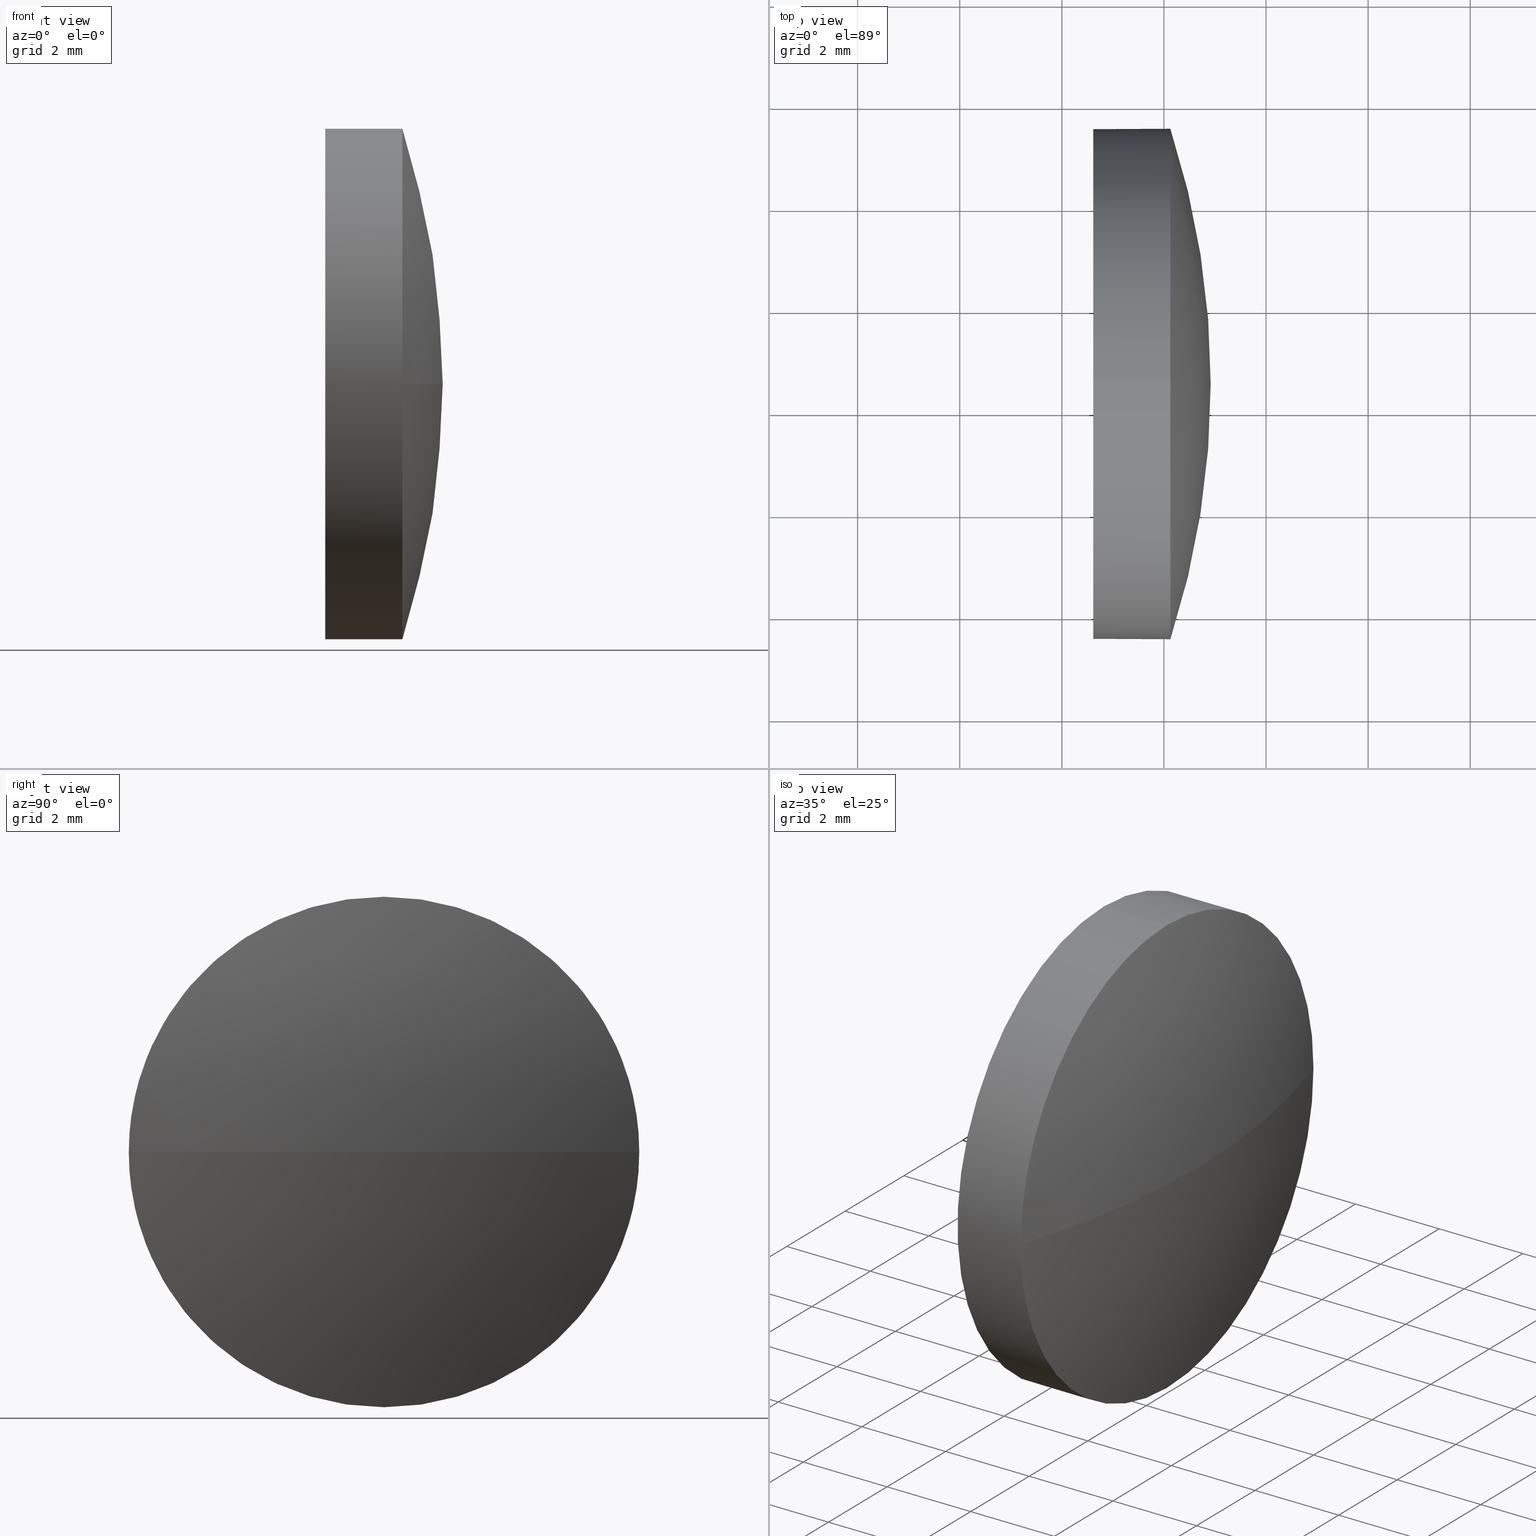
[diagram: canonical four-view strip — front | top / right | iso, engineering-drawing reading convention]
A machine part, canonical four-view strip (front | top / right | iso — engineering-drawing reading convention). The complete STEP part file that produces these views, byte-faithful:
ISO-10303-21;
HEADER;
FILE_DESCRIPTION (( 'STEP AP214' ),
    '1' );
FILE_NAME ('100104.STEP',
    '2019-05-13T08:24:57',
    ( '' ),
    ( '' ),
    'SwSTEP 2.0',
    'SolidWorks 2016',
    '' );
FILE_SCHEMA (( 'AUTOMOTIVE_DESIGN' ));
ENDSEC;

DATA;
#1 = ORIENTED_EDGE ( 'NONE', *, *, #185, .T. ) ;
#2 = VECTOR ( 'NONE', #164, 1000.000000000000000 ) ;
#3 = VERTEX_POINT ( 'NONE', #161 ) ;
#4 = AXIS2_PLACEMENT_3D ( 'NONE', #78, #125, #124 ) ;
#5 = CARTESIAN_POINT ( 'NONE',  ( 448.1260620290427700, 82.52816574681480700, 0.0000000000000000000 ) ) ;
#6 = SHAPE_DEFINITION_REPRESENTATION ( #122, #153 ) ;
#7 = MECHANICAL_DESIGN_GEOMETRIC_PRESENTATION_REPRESENTATION (  '', ( #145 ), #87 ) ;
#8 = CARTESIAN_POINT ( 'NONE',  ( 448.1260620290427700, 82.52816574681480700, 0.0000000000000000000 ) ) ;
#9 = CARTESIAN_POINT ( 'NONE',  ( 446.6160620290427800, 82.52816574681480700, 5.000000000000004400 ) ) ;
#10 = FILL_AREA_STYLE_COLOUR ( '', #58 ) ;
#11 = AXIS2_PLACEMENT_3D ( 'NONE', #35, #178, #33 ) ;
#12 = DIRECTION ( 'NONE',  ( 1.000000000000000000, 0.0000000000000000000, 0.0000000000000000000 ) ) ;
#13 = UNCERTAINTY_MEASURE_WITH_UNIT (LENGTH_MEASURE( 1.000000000000000100E-005 ), #64, 'distance_accuracy_value', 'NONE');
#14 = ORIENTED_EDGE ( 'NONE', *, *, #130, .F. ) ;
#15 =( NAMED_UNIT ( * ) SI_UNIT ( $, .STERADIAN. ) SOLID_ANGLE_UNIT ( ) );
#16 = DIRECTION ( 'NONE',  ( -1.000000000000000000, -0.0000000000000000000, -0.0000000000000000000 ) ) ;
#17 = SURFACE_STYLE_FILL_AREA ( #126 ) ;
#18 = DIRECTION ( 'NONE',  ( 1.000000000000000000, 0.0000000000000000000, 0.0000000000000000000 ) ) ;
#19 = PRESENTATION_LAYER_ASSIGNMENT (  '', '', ( #145 ) ) ;
#20 = SURFACE_STYLE_USAGE ( .BOTH. , #110 ) ;
#21 = APPLICATION_CONTEXT ( 'automotive_design' ) ;
#22 = ORIENTED_EDGE ( 'NONE', *, *, #50, .F. ) ;
#23 = EDGE_CURVE ( 'NONE', #111, #55, #157, .T. ) ;
#24 = VERTEX_POINT ( 'NONE', #121 ) ;
#25 = ORIENTED_EDGE ( 'NONE', *, *, #57, .F. ) ;
#26 = ADVANCED_FACE ( 'NONE', ( #27 ), #119, .T. ) ;
#27 = FACE_OUTER_BOUND ( 'NONE', #44, .T. ) ;
#28 = DIRECTION ( 'NONE',  ( -1.000000000000000000, -0.0000000000000000000, -0.0000000000000000000 ) ) ;
#29 = AXIS2_PLACEMENT_3D ( 'NONE', #48, #61, #36 ) ;
#30 = ORIENTED_EDGE ( 'NONE', *, *, #172, .T. ) ;
#31 = CARTESIAN_POINT ( 'NONE',  ( 432.6982772189161900, 82.52816574681475000, 0.0000000000000000000 ) ) ;
#32 =( LENGTH_UNIT ( ) NAMED_UNIT ( * ) SI_UNIT ( .MILLI., .METRE. ) );
#33 = DIRECTION ( 'NONE',  ( 0.0000000000000000000, 1.000000000000000000, 0.0000000000000000000 ) ) ;
#34 = ORIENTED_EDGE ( 'NONE', *, *, #23, .T. ) ;
#35 = CARTESIAN_POINT ( 'NONE',  ( 432.6982772189161900, 82.52816574681475000, 0.0000000000000000000 ) ) ;
#36 = DIRECTION ( 'NONE',  ( 0.0000000000000000000, 0.0000000000000000000, 1.000000000000000000 ) ) ;
#37 = FACE_OUTER_BOUND ( 'NONE', #148, .T. ) ;
#38 = CIRCLE ( 'NONE', #29, 5.000000000000004400 ) ;
#39 = MECHANICAL_DESIGN_GEOMETRIC_PRESENTATION_REPRESENTATION (  '', ( #43 ), #80 ) ;
#40 = PRODUCT_CONTEXT ( 'NONE', #97, 'mechanical' ) ;
#41 = APPLICATION_PROTOCOL_DEFINITION ( 'draft international standard', 'automotive_design', 1998, #97 ) ;
#42 = CLOSED_SHELL ( 'NONE', ( #152, #133, #103, #26, #135 ) ) ;
#43 = STYLED_ITEM ( 'NONE', ( #132 ), #153 ) ;
#44 = EDGE_LOOP ( 'NONE', ( #89, #186, #34, #30, #22 ) ) ;
#45 = EDGE_CURVE ( 'NONE', #3, #111, #53, .T. ) ;
#46 = SPHERICAL_SURFACE ( 'NONE', #11, 16.21778481012659200 ) ;
#47 = CIRCLE ( 'NONE', #4, 5.000000000000004400 ) ;
#48 = CARTESIAN_POINT ( 'NONE',  ( 448.1260620290427700, 82.52816574681480700, 0.0000000000000000000 ) ) ;
#49 = DIRECTION ( 'NONE',  ( 1.000000000000000000, 0.0000000000000000000, 0.0000000000000000000 ) ) ;
#50 = EDGE_CURVE ( 'NONE', #63, #176, #181, .T. ) ;
#51 = AXIS2_PLACEMENT_3D ( 'NONE', #62, #82, #12 ) ;
#52 = APPLICATION_PROTOCOL_DEFINITION ( 'draft international standard', 'automotive_design', 1998, #21 ) ;
#53 = CIRCLE ( 'NONE', #84, 16.21778481012658800 ) ;
#54 = EDGE_CURVE ( 'NONE', #176, #63, #73, .T. ) ;
#55 = VERTEX_POINT ( 'NONE', #59 ) ;
#56 = LINE ( 'NONE', #144, #2 ) ;
#57 = EDGE_CURVE ( 'NONE', #60, #111, #163, .T. ) ;
#58 = COLOUR_RGB ( '',1.000000000000000000, 1.000000000000000000, 1.000000000000000000 ) ;
#59 = CARTESIAN_POINT ( 'NONE',  ( 448.1260620290427700, 82.52816574681480700, 5.000000000000004400 ) ) ;
#60 = VERTEX_POINT ( 'NONE', #104 ) ;
#61 = DIRECTION ( 'NONE',  ( -1.000000000000000000, -0.0000000000000000000, -0.0000000000000000000 ) ) ;
#62 = CARTESIAN_POINT ( 'NONE',  ( 0.0000000000000000000, 0.0000000000000000000, 0.0000000000000000000 ) ) ;
#63 = VERTEX_POINT ( 'NONE', #142 ) ;
#64 =( LENGTH_UNIT ( ) NAMED_UNIT ( * ) SI_UNIT ( .MILLI., .METRE. ) );
#65 =( LENGTH_UNIT ( ) NAMED_UNIT ( * ) SI_UNIT ( .MILLI., .METRE. ) );
#66 = ORIENTED_EDGE ( 'NONE', *, *, #54, .F. ) ;
#67 = ORIENTED_EDGE ( 'NONE', *, *, #130, .T. ) ;
#68 = PRESENTATION_LAYER_ASSIGNMENT (  '', '', ( #43 ) ) ;
#69 = ORIENTED_EDGE ( 'NONE', *, *, #70, .T. ) ;
#70 = EDGE_CURVE ( 'NONE', #3, #24, #128, .T. ) ;
#71 = DIRECTION ( 'NONE',  ( 0.0000000000000000000, 1.000000000000000000, 1.224646799147353500E-016 ) ) ;
#72 = DIRECTION ( 'NONE',  ( 0.0000000000000000000, 0.0000000000000000000, 1.000000000000000000 ) ) ;
#73 = CIRCLE ( 'NONE', #134, 5.000000000000004400 ) ;
#74 = VECTOR ( 'NONE', #167, 1000.000000000000000 ) ;
#75 = CARTESIAN_POINT ( 'NONE',  ( 445.6745115572683200, 82.52816574681480700, 5.000000000000004400 ) ) ;
#76 = ORIENTED_EDGE ( 'NONE', *, *, #70, .F. ) ;
#77 = FILL_AREA_STYLE_COLOUR ( '', #169 ) ;
#78 = CARTESIAN_POINT ( 'NONE',  ( 448.1260620290427700, 82.52816574681480700, 0.0000000000000000000 ) ) ;
#79 = CARTESIAN_POINT ( 'NONE',  ( 446.6160620290427800, 82.52816574681480700, 0.0000000000000000000 ) ) ;
#80 =( GEOMETRIC_REPRESENTATION_CONTEXT ( 3 ) GLOBAL_UNCERTAINTY_ASSIGNED_CONTEXT ( ( #101 ) ) GLOBAL_UNIT_ASSIGNED_CONTEXT ( ( #65, #170, #156 ) ) REPRESENTATION_CONTEXT ( 'NONE', 'WORKASPACE' ) );
#81 = EDGE_LOOP ( 'NONE', ( #76, #83, #25, #14 ) ) ;
#82 = DIRECTION ( 'NONE',  ( 0.0000000000000000000, 0.0000000000000000000, 1.000000000000000000 ) ) ;
#83 = ORIENTED_EDGE ( 'NONE', *, *, #45, .T. ) ;
#84 = AXIS2_PLACEMENT_3D ( 'NONE', #31, #151, #71 ) ;
#85 = ORIENTED_EDGE ( 'NONE', *, *, #174, .F. ) ;
#86 = AXIS2_PLACEMENT_3D ( 'NONE', #106, #160, #72 ) ;
#87 =( GEOMETRIC_REPRESENTATION_CONTEXT ( 3 ) GLOBAL_UNCERTAINTY_ASSIGNED_CONTEXT ( ( #120 ) ) GLOBAL_UNIT_ASSIGNED_CONTEXT ( ( #32, #91, #15 ) ) REPRESENTATION_CONTEXT ( 'NONE', 'WORKASPACE' ) );
#88 = CARTESIAN_POINT ( 'NONE',  ( 445.6745115572683200, 82.52816574681480700, 0.0000000000000000000 ) ) ;
#89 = ORIENTED_EDGE ( 'NONE', *, *, #185, .F. ) ;
#90 = CARTESIAN_POINT ( 'NONE',  ( 445.6745115572683200, 82.52816574681480700, 0.0000000000000000000 ) ) ;
#91 =( NAMED_UNIT ( * ) PLANE_ANGLE_UNIT ( ) SI_UNIT ( $, .RADIAN. ) );
#92 = PRODUCT_DEFINITION_FORMATION_WITH_SPECIFIED_SOURCE ( '�κ�', '', #127, .NOT_KNOWN. ) ;
#93 = DIRECTION ( 'NONE',  ( -0.0000000000000000000, 0.0000000000000000000, 1.000000000000000000 ) ) ;
#94 = PRESENTATION_STYLE_ASSIGNMENT (( #20 ) ) ;
#95 = PLANE ( 'NONE',  #175 ) ;
#96 = ORIENTED_EDGE ( 'NONE', *, *, #174, .T. ) ;
#97 = APPLICATION_CONTEXT ( 'automotive_design' ) ;
#98 = PRODUCT_DEFINITION ( 'δ֪', '', #92, #129 ) ;
#99 = ORIENTED_EDGE ( 'NONE', *, *, #23, .F. ) ;
#100 = AXIS2_PLACEMENT_3D ( 'NONE', #5, #108, #177 ) ;
#101 = UNCERTAINTY_MEASURE_WITH_UNIT (LENGTH_MEASURE( 1.000000000000000100E-005 ), #65, 'distance_accuracy_value', 'NONE');
#102 = ORIENTED_EDGE ( 'NONE', *, *, #172, .F. ) ;
#103 = ADVANCED_FACE ( 'NONE', ( #37 ), #131, .T. ) ;
#104 = CARTESIAN_POINT ( 'NONE',  ( 448.1260620290427700, 82.52816574681480700, -5.000000000000004400 ) ) ;
#105 = DIRECTION ( 'NONE',  ( 0.0000000000000000000, 0.0000000000000000000, 1.000000000000000000 ) ) ;
#106 = CARTESIAN_POINT ( 'NONE',  ( 446.6160620290427800, 82.52816574681480700, 0.0000000000000000000 ) ) ;
#107 = ORIENTED_EDGE ( 'NONE', *, *, #50, .T. ) ;
#108 = DIRECTION ( 'NONE',  ( -1.000000000000000000, -0.0000000000000000000, -0.0000000000000000000 ) ) ;
#109 =( NAMED_UNIT ( * ) PLANE_ANGLE_UNIT ( ) SI_UNIT ( $, .RADIAN. ) );
#110 = SURFACE_SIDE_STYLE ('',( #17 ) ) ;
#111 = VERTEX_POINT ( 'NONE', #179 ) ;
#112 = CARTESIAN_POINT ( 'NONE',  ( 432.6982772189161900, 82.52816574681475000, 0.0000000000000000000 ) ) ;
#113 = DIRECTION ( 'NONE',  ( -1.000000000000000000, -0.0000000000000000000, -0.0000000000000000000 ) ) ;
#114 = AXIS2_PLACEMENT_3D ( 'NONE', #166, #93, #49 ) ;
#115 = DIRECTION ( 'NONE',  ( 0.0000000000000000000, 0.0000000000000000000, 1.000000000000000000 ) ) ;
#116 = FACE_OUTER_BOUND ( 'NONE', #138, .T. ) ;
#117 = FILL_AREA_STYLE ('',( #77 ) ) ;
#118 = SURFACE_STYLE_USAGE ( .BOTH. , #168 ) ;
#119 = CYLINDRICAL_SURFACE ( 'NONE', #159, 5.000000000000004400 ) ;
#120 = UNCERTAINTY_MEASURE_WITH_UNIT (LENGTH_MEASURE( 1.000000000000000100E-005 ), #32, 'distance_accuracy_value', 'NONE');
#121 = CARTESIAN_POINT ( 'NONE',  ( 448.1260620290427700, 87.52816574681479300, 0.0000000000000000000 ) ) ;
#122 = PRODUCT_DEFINITION_SHAPE ( 'NONE', 'NONE',  #98 ) ;
#123 = PRODUCT_RELATED_PRODUCT_CATEGORY ( 'part', '', ( #127 ) ) ;
#124 = DIRECTION ( 'NONE',  ( 0.0000000000000000000, 0.0000000000000000000, 1.000000000000000000 ) ) ;
#125 = DIRECTION ( 'NONE',  ( -1.000000000000000000, -0.0000000000000000000, -0.0000000000000000000 ) ) ;
#126 = FILL_AREA_STYLE ('',( #10 ) ) ;
#127 = PRODUCT ( '100104', '100104', '', ( #40 ) ) ;
#128 = CIRCLE ( 'NONE', #114, 16.21778481012658800 ) ;
#129 = PRODUCT_DEFINITION_CONTEXT ( 'detailed design', #21, 'design' ) ;
#130 = EDGE_CURVE ( 'NONE', #24, #60, #47, .T. ) ;
#131 = SPHERICAL_SURFACE ( 'NONE', #180, 16.21778481012659200 ) ;
#132 = PRESENTATION_STYLE_ASSIGNMENT (( #118 ) ) ;
#133 = ADVANCED_FACE ( 'NONE', ( #146 ), #46, .T. ) ;
#134 = AXIS2_PLACEMENT_3D ( 'NONE', #79, #165, #162 ) ;
#135 = ADVANCED_FACE ( 'NONE', ( #136 ), #95, .F. ) ;
#136 = FACE_OUTER_BOUND ( 'NONE', #173, .T. ) ;
#137 =( GEOMETRIC_REPRESENTATION_CONTEXT ( 3 ) GLOBAL_UNCERTAINTY_ASSIGNED_CONTEXT ( ( #13 ) ) GLOBAL_UNIT_ASSIGNED_CONTEXT ( ( #64, #109, #140 ) ) REPRESENTATION_CONTEXT ( 'NONE', 'WORKASPACE' ) );
#138 = EDGE_LOOP ( 'NONE', ( #67, #1, #66, #102, #96 ) ) ;
#139 = DIRECTION ( 'NONE',  ( -0.0000000000000000000, 0.0000000000000000000, -1.000000000000000000 ) ) ;
#140 =( NAMED_UNIT ( * ) SI_UNIT ( $, .STERADIAN. ) SOLID_ANGLE_UNIT ( ) );
#141 = MANIFOLD_SOLID_BREP ( '��ת1', #42 ) ;
#142 = CARTESIAN_POINT ( 'NONE',  ( 446.6160620290427800, 82.52816574681480700, -5.000000000000004400 ) ) ;
#143 = ORIENTED_EDGE ( 'NONE', *, *, #45, .F. ) ;
#144 = CARTESIAN_POINT ( 'NONE',  ( 445.6745115572683200, 82.52816574681480700, -5.000000000000004400 ) ) ;
#145 = STYLED_ITEM ( 'NONE', ( #94 ), #141 ) ;
#146 = FACE_OUTER_BOUND ( 'NONE', #81, .T. ) ;
#147 = SURFACE_STYLE_FILL_AREA ( #117 ) ;
#148 = EDGE_LOOP ( 'NONE', ( #143, #69, #85, #99 ) ) ;
#149 = AXIS2_PLACEMENT_3D ( 'NONE', #90, #16, #154 ) ;
#150 = LINE ( 'NONE', #75, #74 ) ;
#151 = DIRECTION ( 'NONE',  ( 0.0000000000000000000, 1.224646799147353200E-016, -1.000000000000000000 ) ) ;
#152 = ADVANCED_FACE ( 'NONE', ( #116 ), #158, .T. ) ;
#153 = ADVANCED_BREP_SHAPE_REPRESENTATION ( '100104', ( #141, #51 ), #137 ) ;
#154 = DIRECTION ( 'NONE',  ( 0.0000000000000000000, 0.0000000000000000000, 1.000000000000000000 ) ) ;
#155 = CARTESIAN_POINT ( 'NONE',  ( 446.6160620290427800, 82.52816574681480700, 0.0000000000000000000 ) ) ;
#156 =( NAMED_UNIT ( * ) SI_UNIT ( $, .STERADIAN. ) SOLID_ANGLE_UNIT ( ) );
#157 = CIRCLE ( 'NONE', #100, 5.000000000000004400 ) ;
#158 = CYLINDRICAL_SURFACE ( 'NONE', #149, 5.000000000000004400 ) ;
#159 = AXIS2_PLACEMENT_3D ( 'NONE', #88, #28, #105 ) ;
#160 = DIRECTION ( 'NONE',  ( -1.000000000000000000, -0.0000000000000000000, -0.0000000000000000000 ) ) ;
#161 = CARTESIAN_POINT ( 'NONE',  ( 448.9160620290427900, 82.52816574681475000, 0.0000000000000000000 ) ) ;
#162 = DIRECTION ( 'NONE',  ( 0.0000000000000000000, 0.0000000000000000000, 1.000000000000000000 ) ) ;
#163 = CIRCLE ( 'NONE', #171, 5.000000000000004400 ) ;
#164 = DIRECTION ( 'NONE',  ( -1.000000000000000000, -0.0000000000000000000, -0.0000000000000000000 ) ) ;
#165 = DIRECTION ( 'NONE',  ( -1.000000000000000000, -0.0000000000000000000, -0.0000000000000000000 ) ) ;
#166 = CARTESIAN_POINT ( 'NONE',  ( 432.6982772189161900, 82.52816574681475000, 0.0000000000000000000 ) ) ;
#167 = DIRECTION ( 'NONE',  ( -1.000000000000000000, -0.0000000000000000000, -0.0000000000000000000 ) ) ;
#168 = SURFACE_SIDE_STYLE ('',( #147 ) ) ;
#169 = COLOUR_RGB ( '',1.000000000000000000, 1.000000000000000000, 1.000000000000000000 ) ;
#170 =( NAMED_UNIT ( * ) PLANE_ANGLE_UNIT ( ) SI_UNIT ( $, .RADIAN. ) );
#171 = AXIS2_PLACEMENT_3D ( 'NONE', #8, #113, #115 ) ;
#172 = EDGE_CURVE ( 'NONE', #55, #176, #150, .T. ) ;
#173 = EDGE_LOOP ( 'NONE', ( #184, #107 ) ) ;
#174 = EDGE_CURVE ( 'NONE', #55, #24, #38, .T. ) ;
#175 = AXIS2_PLACEMENT_3D ( 'NONE', #155, #18, #182 ) ;
#176 = VERTEX_POINT ( 'NONE', #9 ) ;
#177 = DIRECTION ( 'NONE',  ( 0.0000000000000000000, 0.0000000000000000000, 1.000000000000000000 ) ) ;
#178 = DIRECTION ( 'NONE',  ( -0.0000000000000000000, 0.0000000000000000000, -1.000000000000000000 ) ) ;
#179 = CARTESIAN_POINT ( 'NONE',  ( 448.1260620290427700, 77.52816574681476400, -6.123233995736768300E-016 ) ) ;
#180 = AXIS2_PLACEMENT_3D ( 'NONE', #112, #139, #183 ) ;
#181 = CIRCLE ( 'NONE', #86, 5.000000000000004400 ) ;
#182 = DIRECTION ( 'NONE',  ( 0.0000000000000000000, 0.0000000000000000000, -1.000000000000000000 ) ) ;
#183 = DIRECTION ( 'NONE',  ( 0.0000000000000000000, 1.000000000000000000, 0.0000000000000000000 ) ) ;
#184 = ORIENTED_EDGE ( 'NONE', *, *, #54, .T. ) ;
#185 = EDGE_CURVE ( 'NONE', #60, #63, #56, .T. ) ;
#186 = ORIENTED_EDGE ( 'NONE', *, *, #57, .T. ) ;
ENDSEC;
END-ISO-10303-21;
